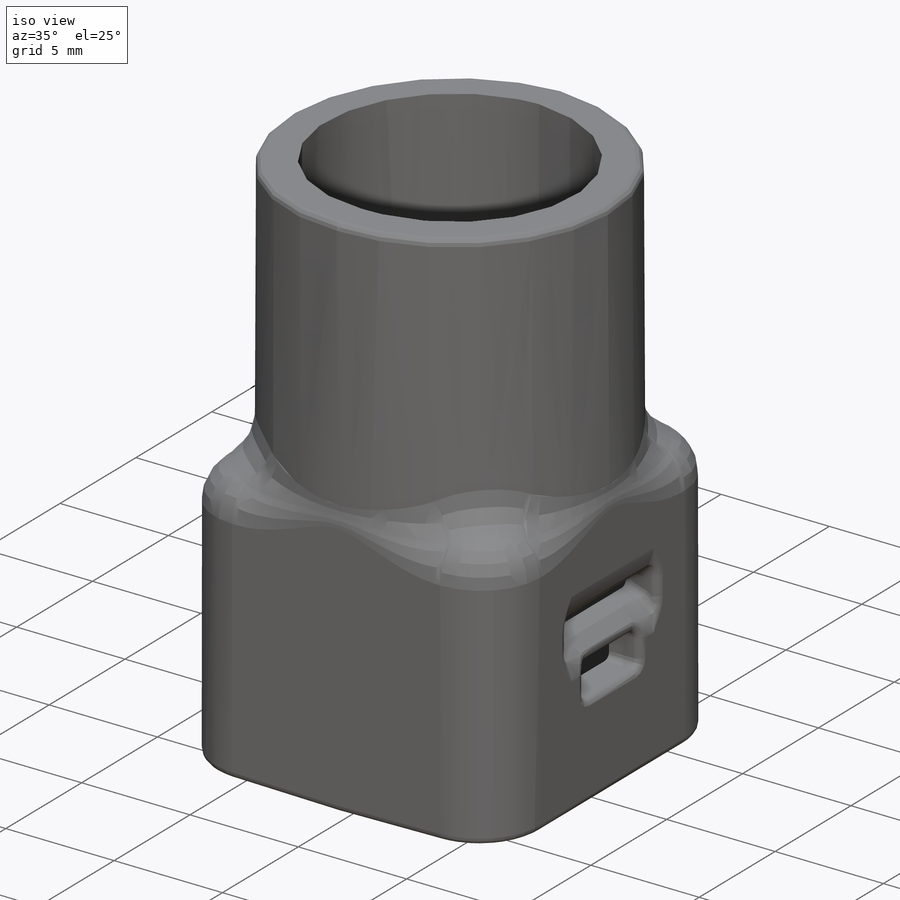
[diagram: iso view]
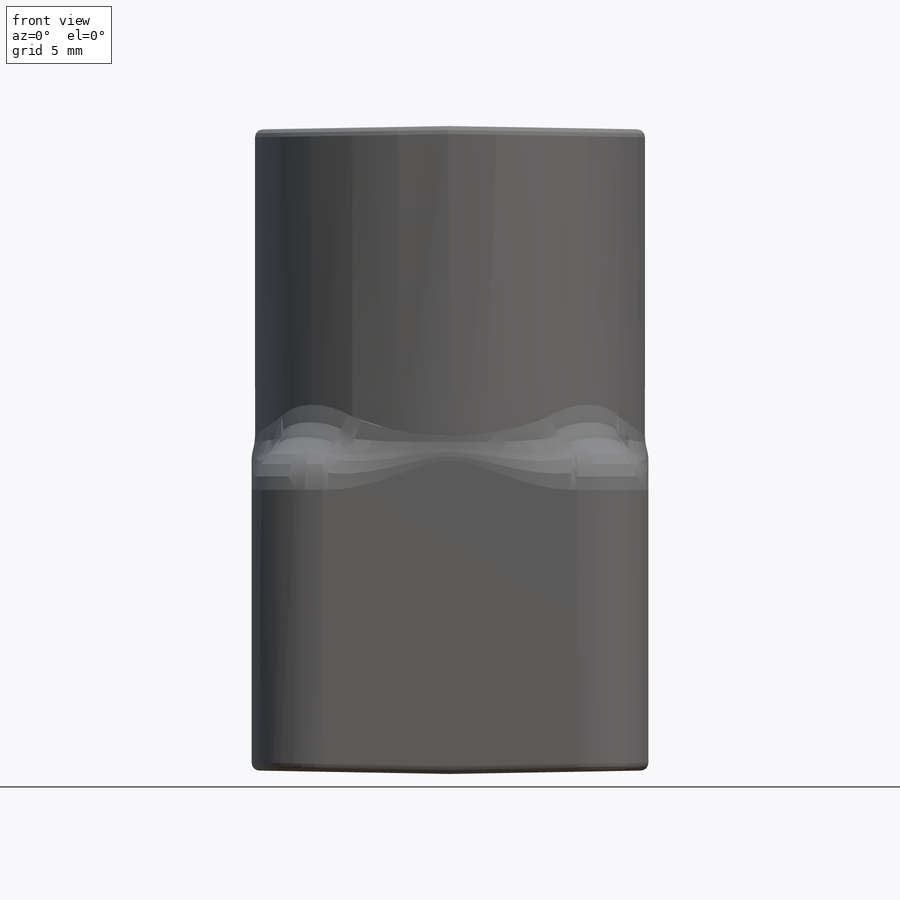
[diagram: front view]
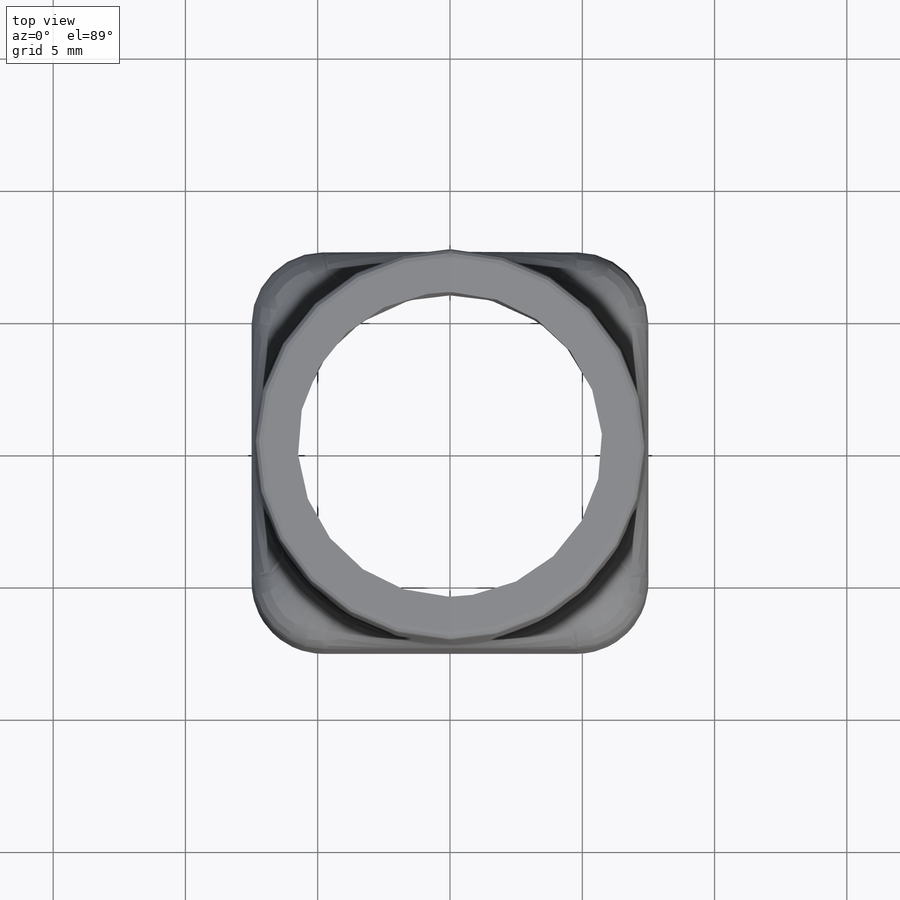
[diagram: top view]
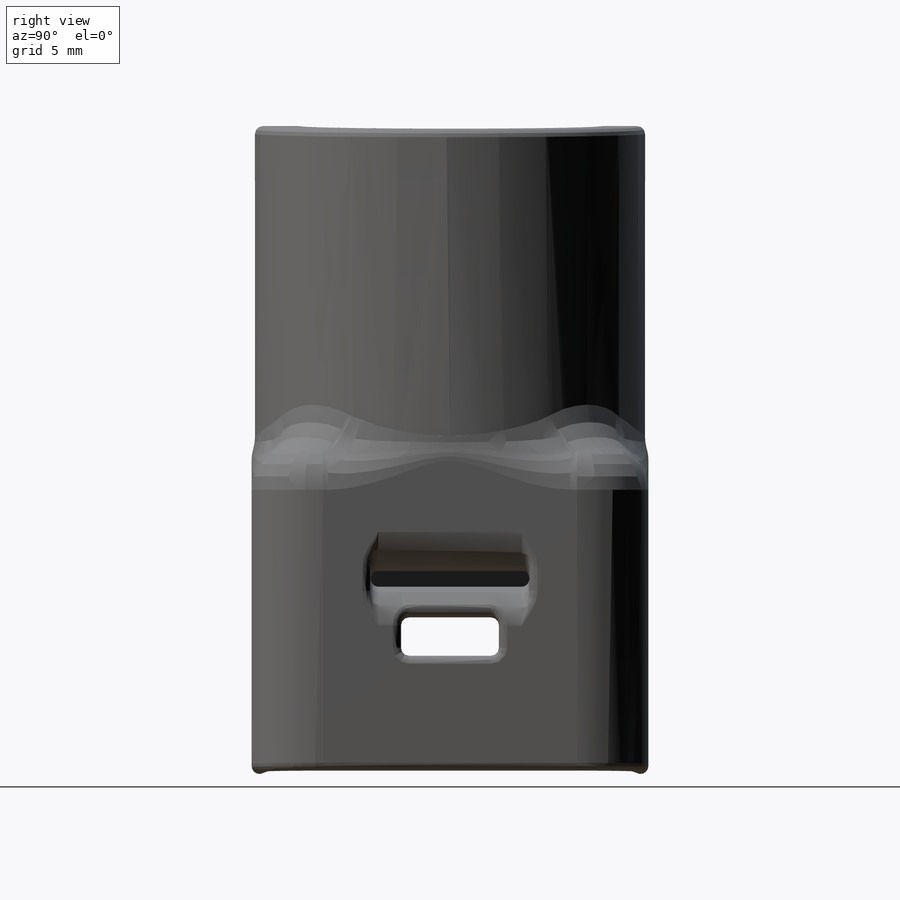
[diagram: right view]
SOLIDWORKS PART (.sldprt)
format: sldprt  version: not decoded by parser v0  size: 995,328 bytes
history: native  units: mm
features: fillet x13, sketch x11, cut_extrude x4, extrude x3, plane x2, material x1 (+11 scaffold rows collapsed)
feature tree (45):
  scaffold x11  (default folders/planes/origin — collapsed)
  material  "ABS"
  sketch  "Sketch1"  dims[D1=11.75mm D2=1.5mm]
  extrude  "Extrude1"  Depth=12mm
  sketch  "Sketch2"  dims[D1=9.127mm D2=12.0mm D3=1.5mm]
  extrude  "Extrude2"  Depth=2mm
  sketch  "Sketch3"
  extrude  "Extrude3"  Depth=10.5mm
  sketch  "Sketch8"  dims[D1=2.75mm D2=2.875mm]
  sketch  "Sketch9"  dims[D1=10.83mm]
  fillet  "Fillet7"  Radius=1.2mm
  fillet  "Fillet8"  Radius=2.7mm
  sketch  "Sketch16"  dims[D1=1.5mm D2=3.75mm D3=6.05mm]
  cut_extrude  "Extrude10"  [1 undecoded]
  sketch  "Sketch17"  dims[c1.D1=~7.408606mm c2.D1=0.5deg c3.D1=7.375mm c4.D1=1.0deg]
  cut_extrude  "Extrude11"  [1 undecoded]
  fillet  "Fillet5"  Radius=0.3mm
  sketch  "Sketch10"  dims[D1=9.1mm]
  cut_extrude  "Extrude8"  Depth=1.5mm
  fillet  "Fillet9"  Radius=1.75mm
  fillet  "Fillet10"  Radius=1.75mm
  sketch  "Sketch20"  dims[D1=2.82mm D2=0.6mm]
  cut_extrude  "Extrude14"  Depth=6mm
  fillet  "Fillet12"  Radius=0.3mm
  fillet  "Fillet15"  Radius=5mm
  fillet  "Fillet13"  Radius=1.2mm
  fillet  "Fillet14"  Radius=0.8mm
  fillet  "Fillet16"  Radius=0.3mm
  fillet  "Fillet17"  Radius=0.3mm
  plane  "Plane1"  Offset=16mm
  plane  "Plane2"  Offset=4mm
  sketch  "3DSketch2"  dims[c1.D1=~5.385448mm c2.D1=40.0deg c2.D2=~2.900399mm c2.D3=~2.900399mm c3.D2=~2.911762mm c3.D3=~2.911762mm c4.D2=~2.474782mm c4.D3=5.75mm c5.D2=3.14mm c5.D3=4.56mm c5.D4=500.0mm c5.D1=0.5deg c6.D1=0.5deg]
  fillet  "Fillet18"  Radius=0.3mm
  fillet  "Fillet19"  Radius=0.3mm
  sketch  "Sketch21"
decode coverage: 27 of 31 modeling features carry decoded parameters
note: ~ marks probable driven/reference dimensions
note: 2 parameter values undecoded
note: suppression state not decoded; provenance and decode notes live in map.json
